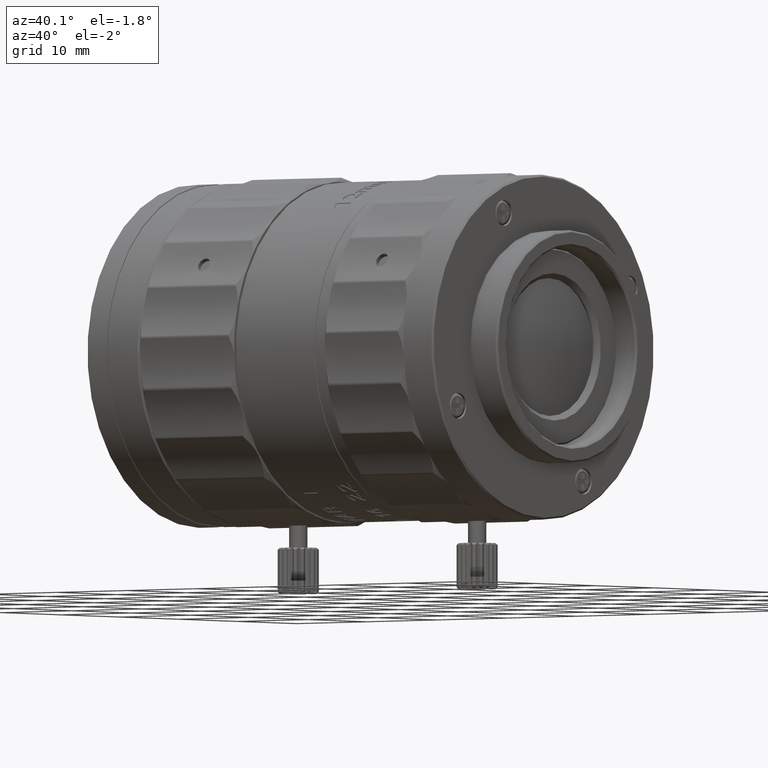
[diagram: clean part render]
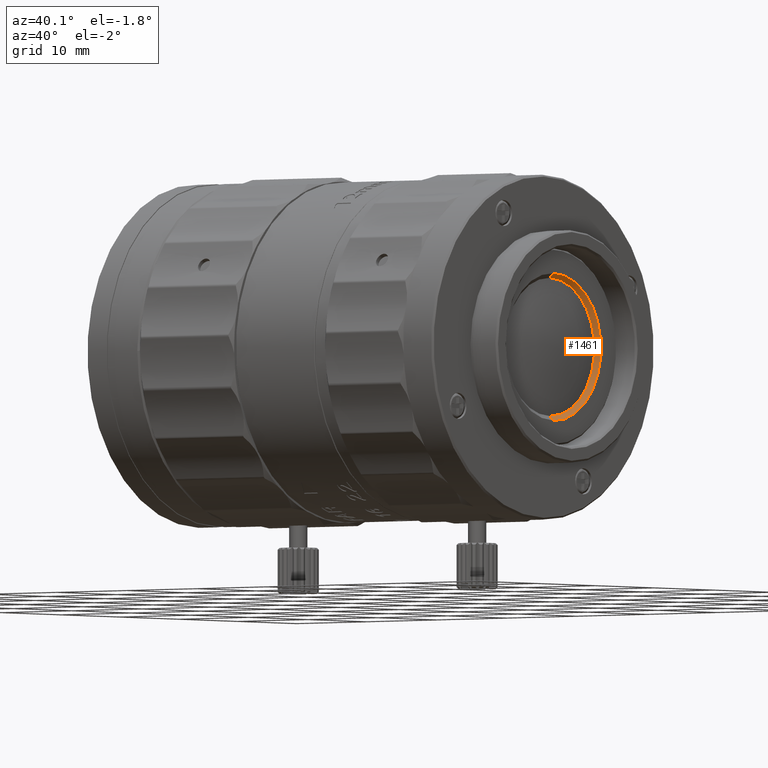
[diagram: same view with one face highlighted and labeled with its STEP entity id]
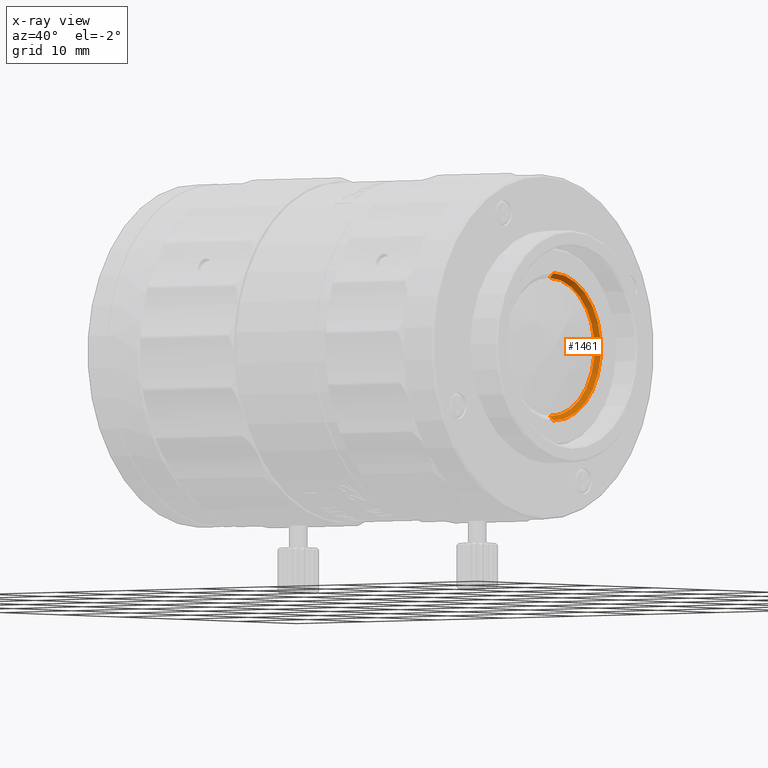
[diagram: x-ray of the same camera — body ghosted, the highlighted face saturated]
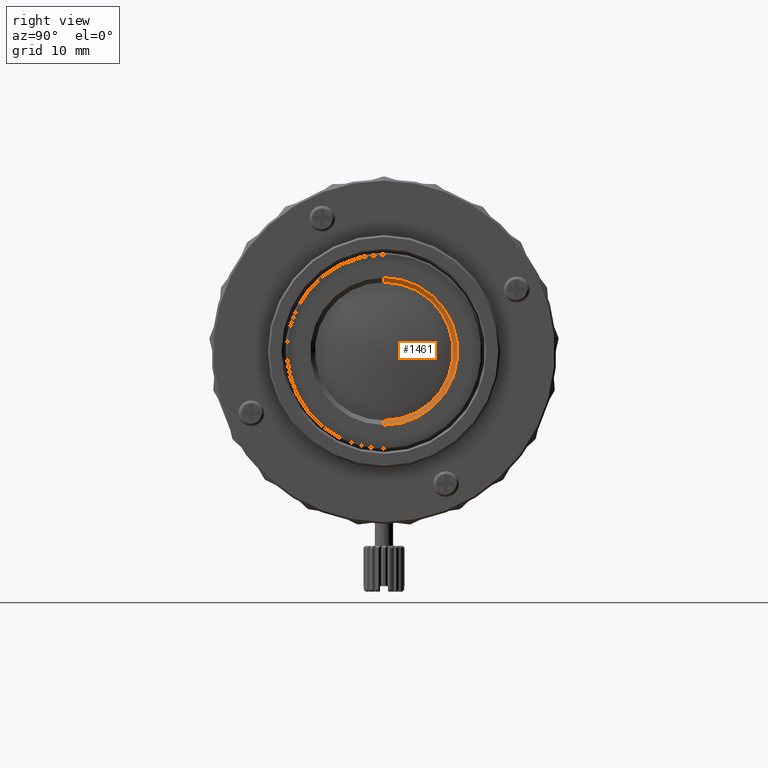
[diagram: same view with one face highlighted and labeled with its STEP entity id]
A machine part, auxiliary view. The second image highlights one B-rep face of the part: STEP entity #1461.
The next image is the same camera in x-ray: the body ghosted, the highlighted face saturated — about 0% of this face is hidden behind the body in this view.
A second angle (right view) of the same face is appended — the face is thin or edge-on in the first view.
In plain terms, the highlighted conical surface has half-angle 44.995 deg.
Its self-contained STEP definition (entity closure, byte-faithful):
#870 = EDGE_CURVE ( 'NONE', #3537, #10894, #15349, .T. ) ;
#923 = DIRECTION ( 'NONE',  ( -1.000000000000000000, -0.000000000000000000, -0.000000000000000000 ) ) ;
#1268 = CARTESIAN_POINT ( 'NONE',  ( 18.80222145269961942, 9.866345449748445970E-16, 8.056482454057594111 ) ) ;
#1290 = CARTESIAN_POINT ( 'NONE',  ( 18.80222145269851097, 0.000000000000000000, -8.056482454056487441 ) ) ;
#1461 = ADVANCED_FACE ( 'NONE', ( #34657 ), #35245, .F. ) ;
#2210 = ORIENTED_EDGE ( 'NONE', *, *, #17680, .F. ) ;
#2652 = DIRECTION ( 'NONE',  ( 0.000000000000000000, 0.000000000000000000, 1.000000000000000000 ) ) ;
#3537 = VERTEX_POINT ( 'NONE', #5595 ) ;
#5595 = CARTESIAN_POINT ( 'NONE',  ( 18.30212822615358448, 0.000000000000000000, -7.556481402544283910 ) ) ;
#5754 = CARTESIAN_POINT ( 'NONE',  ( 18.80222145269851097, 0.000000000000000000, 0.000000000000000000 ) ) ;
#5876 = DIRECTION ( 'NONE',  ( 1.000000000000000000, 0.000000000000000000, 0.000000000000000000 ) ) ;
#6798 = VERTEX_POINT ( 'NONE', #15364 ) ;
#7937 = AXIS2_PLACEMENT_3D ( 'NONE', #5754, #35213, #14132 ) ;
#10894 = VERTEX_POINT ( 'NONE', #25392 ) ;
#11598 = AXIS2_PLACEMENT_3D ( 'NONE', #31179, #5876, #2652 ) ;
#11636 = EDGE_CURVE ( 'NONE', #21836, #10894, #32636, .T. ) ;
#12060 = ORIENTED_EDGE ( 'NONE', *, *, #870, .T. ) ;
#14132 = DIRECTION ( 'NONE',  ( 0.000000000000000000, 0.000000000000000000, -1.000000000000000000 ) ) ;
#15349 = LINE ( 'NONE', #1290, #33971 ) ;
#15364 = CARTESIAN_POINT ( 'NONE',  ( 18.30212822615358448, 9.254020762442360206E-16, 7.556481402544283910 ) ) ;
#17680 = EDGE_CURVE ( 'NONE', #3537, #6798, #34038, .T. ) ;
#19181 = LINE ( 'NONE', #19364, #20847 ) ;
#19364 = CARTESIAN_POINT ( 'NONE',  ( 18.80222145269851097, 9.866345449747091101E-16, 8.056482454056487441 ) ) ;
#20847 = VECTOR ( 'NONE', #21835, 1000.000000000000000 ) ;
#20973 = EDGE_LOOP ( 'NONE', ( #26889, #2210, #12060, #36797 ) ) ;
#21810 = DIRECTION ( 'NONE',  ( 0.000000000000000000, 0.000000000000000000, -1.000000000000000000 ) ) ;
#21835 = DIRECTION ( 'NONE',  ( 0.7071719496294214258, 8.658762405545419190E-17, 0.7070416067370597357 ) ) ;
#21836 = VERTEX_POINT ( 'NONE', #1268 ) ;
#25392 = CARTESIAN_POINT ( 'NONE',  ( 18.80222145269961942, 0.000000000000000000, -8.056482454057594111 ) ) ;
#26889 = ORIENTED_EDGE ( 'NONE', *, *, #34032, .F. ) ;
#30173 = CARTESIAN_POINT ( 'NONE',  ( 18.80222145269961942, 0.000000000000000000, 0.000000000000000000 ) ) ;
#31179 = CARTESIAN_POINT ( 'NONE',  ( 18.30212822615358448, 0.000000000000000000, 0.000000000000000000 ) ) ;
#32636 = CIRCLE ( 'NONE', #33252, 8.056482454055386100 ) ;
#33252 = AXIS2_PLACEMENT_3D ( 'NONE', #30173, #923, #21810 ) ;
#33971 = VECTOR ( 'NONE', #36077, 1000.000000000000000 ) ;
#34032 = EDGE_CURVE ( 'NONE', #6798, #21836, #19181, .T. ) ;
#34038 = CIRCLE ( 'NONE', #11598, 7.556481402544283910 ) ;
#34657 = FACE_OUTER_BOUND ( 'NONE', #20973, .T. ) ;
#35213 = DIRECTION ( 'NONE',  ( 1.000000000000000000, 0.000000000000000000, 0.000000000000000000 ) ) ;
#35245 = CONICAL_SURFACE ( 'NONE', #7937, 8.056482454056487441, 0.7853059970542494161 ) ;
#36077 = DIRECTION ( 'NONE',  ( 0.7071719496294214258, 0.000000000000000000, -0.7070416067370597357 ) ) ;
#36797 = ORIENTED_EDGE ( 'NONE', *, *, #11636, .F. ) ;